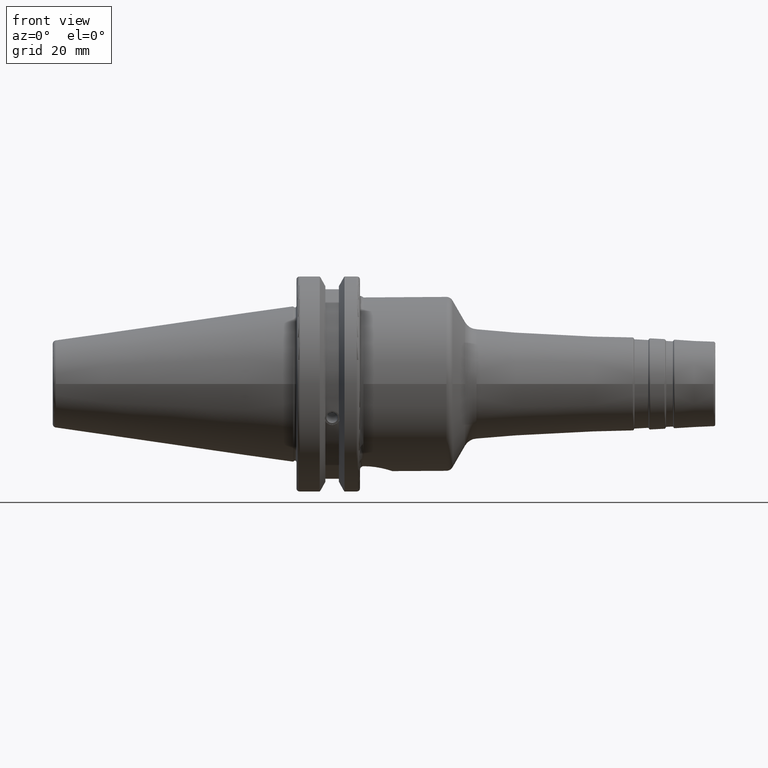
[diagram: clean part render]
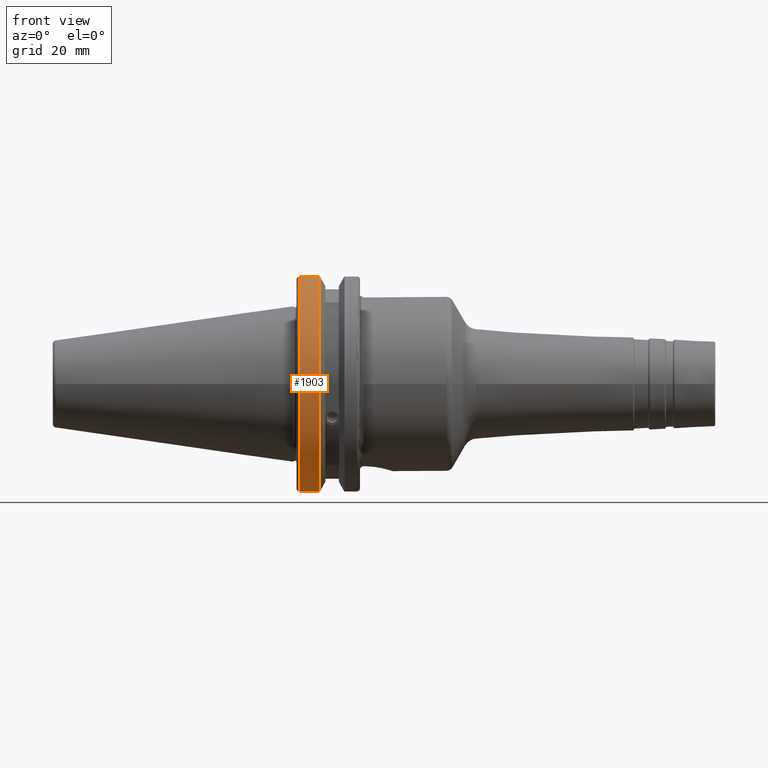
[diagram: same view with one face highlighted and labeled with its STEP entity id]
A machine part, front view. The second image highlights one B-rep face of the part: STEP entity #1903.
In plain terms, the highlighted cylindrical surface (partial cylindrical patch) has radius 31.75 mm, axis along (1, 0, 0).
Its self-contained STEP definition (entity closure, byte-faithful):
#176=CYLINDRICAL_SURFACE('',#2157,31.75);
#258=FACE_OUTER_BOUND('',#377,.T.);
#377=EDGE_LOOP('',(#1656,#1657,#1658,#1659));
#493=LINE('',#3663,#591);
#494=LINE('',#3669,#592);
#591=VECTOR('',#2687,10.);
#592=VECTOR('',#2690,10.);
#714=CIRCLE('',#2155,31.75);
#715=CIRCLE('',#2158,31.75);
#907=VERTEX_POINT('',#3642);
#908=VERTEX_POINT('',#3651);
#909=VERTEX_POINT('',#3662);
#910=VERTEX_POINT('',#3668);
#1173=EDGE_CURVE('',#907,#908,#714,.T.);
#1175=EDGE_CURVE('',#908,#909,#493,.T.);
#1177=EDGE_CURVE('',#910,#907,#494,.T.);
#1178=EDGE_CURVE('',#909,#910,#715,.T.);
#1656=ORIENTED_EDGE('',*,*,#1173,.F.);
#1657=ORIENTED_EDGE('',*,*,#1177,.F.);
#1658=ORIENTED_EDGE('',*,*,#1178,.F.);
#1659=ORIENTED_EDGE('',*,*,#1175,.F.);
#1903=ADVANCED_FACE('',(#258),#176,.T.);
#2155=AXIS2_PLACEMENT_3D('',#3652,#2683,#2684);
#2157=AXIS2_PLACEMENT_3D('',#3667,#2688,#2689);
#2158=AXIS2_PLACEMENT_3D('',#3670,#2691,#2692);
#2683=DIRECTION('center_axis',(-1.,0.,0.));
#2684=DIRECTION('ref_axis',(0.,-1.,1.60812264967664E-16));
#2687=DIRECTION('',(1.,0.,0.));
#2688=DIRECTION('center_axis',(1.,0.,0.));
#2689=DIRECTION('ref_axis',(0.,-1.,1.22464679914735E-16));
#2690=DIRECTION('',(-1.,0.,0.));
#2691=DIRECTION('center_axis',(1.,0.,0.));
#2692=DIRECTION('ref_axis',(0.,0.,-1.));
#3642=CARTESIAN_POINT('',(2.,-8.67204822802685,-30.5427254764662));
#3651=CARTESIAN_POINT('',(2.,-8.67204822802685,30.5427254764662));
#3652=CARTESIAN_POINT('Origin',(2.,0.,0.));
#3662=CARTESIAN_POINT('',(7.60793323092436,-8.67204822802685,30.5427254764662));
#3663=CARTESIAN_POINT('',(4.30396661546218,-8.67204822802685,30.5427254764662));
#3667=CARTESIAN_POINT('Origin',(4.30396661546218,0.,0.));
#3668=CARTESIAN_POINT('',(7.60793323092436,-8.67204822802685,-30.5427254764662));
#3669=CARTESIAN_POINT('',(4.30396661546218,-8.67204822802685,-30.5427254764662));
#3670=CARTESIAN_POINT('Origin',(7.60793323092436,0.,0.));